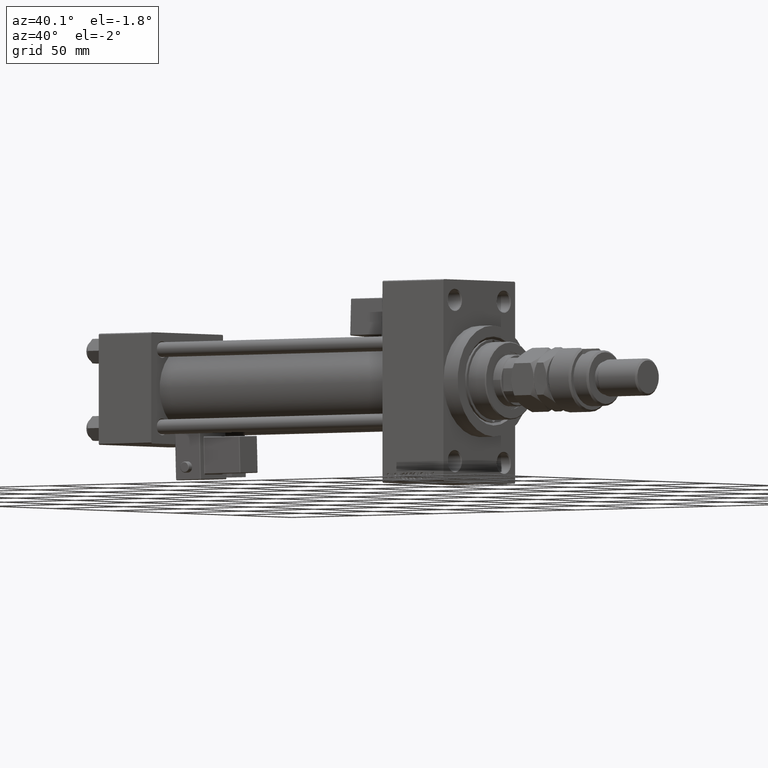
[diagram: clean part render]
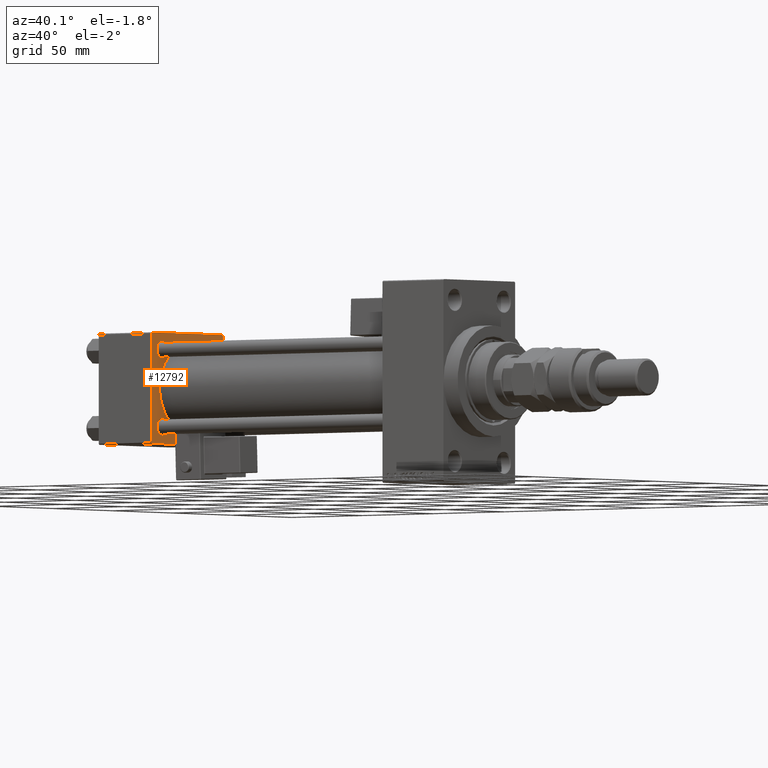
[diagram: same view with one face highlighted and labeled with its STEP entity id]
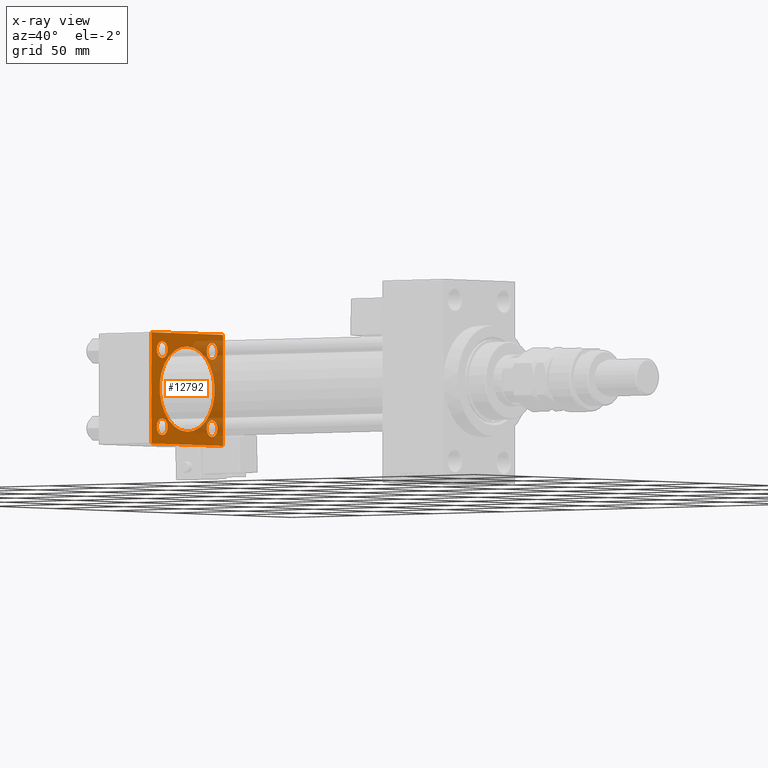
[diagram: x-ray of the same camera — body ghosted, the highlighted face saturated]
A machine part, auxiliary view. The second image highlights one B-rep face of the part: STEP entity #12792.
The next image is the same camera in x-ray: the body ghosted, the highlighted face saturated — about 33% of this face is hidden behind the body in this view.
In plain terms, the highlighted planar face has unit normal (-1, 0, 0).
Its self-contained STEP definition (entity closure, byte-faithful):
#3 = ORIENTED_EDGE ( 'NONE', *, *, #25946, .T. ) ;
#375 = CIRCLE ( 'NONE', #7161, 4.500000000000031974 ) ;
#425 = EDGE_CURVE ( 'NONE', #9847, #6914, #30904, .T. ) ;
#529 = VECTOR ( 'NONE', #16978, 1000.000000000000114 ) ;
#1654 = EDGE_CURVE ( 'NONE', #41457, #6518, #375, .T. ) ;
#2101 = CIRCLE ( 'NONE', #49659, 23.00000000000000000 ) ;
#2212 = AXIS2_PLACEMENT_3D ( 'NONE', #15601, #40328, #31799 ) ;
#2404 = ORIENTED_EDGE ( 'NONE', *, *, #1654, .T. ) ;
#2874 = AXIS2_PLACEMENT_3D ( 'NONE', #51586, #15430, #7447 ) ;
#3602 = VECTOR ( 'NONE', #18200, 1000.000000000000114 ) ;
#3763 = DIRECTION ( 'NONE',  ( 0.000000000000000000, -1.000000000000000000, -1.156482317317871725E-16 ) ) ;
#4022 = LINE ( 'NONE', #16000, #19701 ) ;
#4270 = EDGE_CURVE ( 'NONE', #51488, #5688, #21230, .T. ) ;
#5114 = DIRECTION ( 'NONE',  ( -1.000000000000000000, 0.000000000000000000, -0.000000000000000000 ) ) ;
#5434 = CARTESIAN_POINT ( 'NONE',  ( 37.00000000000000000, -30.00000000000000000, 29.49999999999999289 ) ) ;
#5688 = VERTEX_POINT ( 'NONE', #48260 ) ;
#6022 = CARTESIAN_POINT ( 'NONE',  ( 37.00000000000000711, 2.146024240737016609E-16, -23.00000000000000000 ) ) ;
#6383 = CARTESIAN_POINT ( 'NONE',  ( 37.00000000000000000, -20.84999999999999076, 25.35000000000003695 ) ) ;
#6518 = VERTEX_POINT ( 'NONE', #49311 ) ;
#6656 = CARTESIAN_POINT ( 'NONE',  ( 37.00000000000000000, -20.84999999999999076, -25.35000000000003695 ) ) ;
#6868 = CARTESIAN_POINT ( 'NONE',  ( 37.00000000000000000, 20.84999999999999787, 16.34999999999996945 ) ) ;
#6914 = VERTEX_POINT ( 'NONE', #6868 ) ;
#7161 = AXIS2_PLACEMENT_3D ( 'NONE', #29783, #17808, #38282 ) ;
#7273 = AXIS2_PLACEMENT_3D ( 'NONE', #16356, #36827, #7592 ) ;
#7447 = DIRECTION ( 'NONE',  ( 0.000000000000000000, 0.000000000000000000, 1.000000000000000000 ) ) ;
#7592 = DIRECTION ( 'NONE',  ( 0.000000000000000000, 0.000000000000000000, 1.000000000000000000 ) ) ;
#8259 = EDGE_CURVE ( 'NONE', #38964, #35043, #14976, .T. ) ;
#8396 = DIRECTION ( 'NONE',  ( -1.000000000000000000, 0.000000000000000000, -0.000000000000000000 ) ) ;
#8405 = CARTESIAN_POINT ( 'NONE',  ( 37.00000000000000000, -30.00000000000000000, -29.50000000000001776 ) ) ;
#8444 = CARTESIAN_POINT ( 'NONE',  ( 37.00000000000000000, -20.84999999999999076, -16.34999999999997300 ) ) ;
#9083 = AXIS2_PLACEMENT_3D ( 'NONE', #42784, #13801, #22035 ) ;
#9368 = CARTESIAN_POINT ( 'NONE',  ( 37.00000000000000000, -29.49999999999998579, 29.99999999999999289 ) ) ;
#9535 = EDGE_LOOP ( 'NONE', ( #34359, #22742 ) ) ;
#9764 = DIRECTION ( 'NONE',  ( 0.000000000000000000, 0.000000000000000000, -1.000000000000000000 ) ) ;
#9847 = VERTEX_POINT ( 'NONE', #36660 ) ;
#10074 = CIRCLE ( 'NONE', #30441, 4.500000000000031974 ) ;
#10151 = EDGE_CURVE ( 'NONE', #6914, #9847, #37968, .T. ) ;
#11186 = EDGE_LOOP ( 'NONE', ( #42302, #42013 ) ) ;
#11805 = CARTESIAN_POINT ( 'NONE',  ( 37.00000000000000000, 20.84999999999999787, -20.85000000000000142 ) ) ;
#12276 = CARTESIAN_POINT ( 'NONE',  ( 37.00000000000000000, -30.00000000000000000, 29.99999999999999289 ) ) ;
#12423 = CARTESIAN_POINT ( 'NONE',  ( 37.00000000000000000, 29.99999999999999289, 29.50000000000000000 ) ) ;
#12755 = VERTEX_POINT ( 'NONE', #37228 ) ;
#12792 = ADVANCED_FACE ( 'NONE', ( #18833, #47289, #35054, #30267, #22298, #46760 ), #26280, .F. ) ;
#12819 = ORIENTED_EDGE ( 'NONE', *, *, #45525, .F. ) ;
#13038 = CARTESIAN_POINT ( 'NONE',  ( 37.00000000000000000, -20.84999999999999076, 20.85000000000000497 ) ) ;
#13210 = VERTEX_POINT ( 'NONE', #9368 ) ;
#13407 = EDGE_LOOP ( 'NONE', ( #21042, #17309 ) ) ;
#13801 = DIRECTION ( 'NONE',  ( -1.000000000000000000, 0.000000000000000000, -0.000000000000000000 ) ) ;
#13875 = CARTESIAN_POINT ( 'NONE',  ( 37.00000000000000000, -20.84999999999999076, -20.85000000000000497 ) ) ;
#14487 = DIRECTION ( 'NONE',  ( 0.000000000000000000, 0.7071067811865474617, -0.7071067811865474617 ) ) ;
#14976 = CIRCLE ( 'NONE', #46357, 4.500000000000031974 ) ;
#15430 = DIRECTION ( 'NONE',  ( -1.000000000000000000, 0.000000000000000000, -0.000000000000000000 ) ) ;
#15601 = CARTESIAN_POINT ( 'NONE',  ( 37.00000000000000000, 20.84999999999999787, -20.85000000000000142 ) ) ;
#15679 = ORIENTED_EDGE ( 'NONE', *, *, #4270, .T. ) ;
#16000 = CARTESIAN_POINT ( 'NONE',  ( 37.00000000000000000, 29.99999999999999289, 30.00000000000000000 ) ) ;
#16150 = DIRECTION ( 'NONE',  ( 0.000000000000000000, 0.000000000000000000, 1.000000000000000000 ) ) ;
#16273 = VERTEX_POINT ( 'NONE', #8444 ) ;
#16356 = CARTESIAN_POINT ( 'NONE',  ( 37.00000000000000711, -2.602085213965210642E-15, 0.000000000000000000 ) ) ;
#16437 = LINE ( 'NONE', #20168, #50990 ) ;
#16746 = EDGE_CURVE ( 'NONE', #16273, #38478, #10074, .T. ) ;
#16978 = DIRECTION ( 'NONE',  ( 0.000000000000000000, -0.7071067811865474617, 0.7071067811865474617 ) ) ;
#17309 = ORIENTED_EDGE ( 'NONE', *, *, #425, .T. ) ;
#17808 = DIRECTION ( 'NONE',  ( -1.000000000000000000, 0.000000000000000000, -0.000000000000000000 ) ) ;
#17993 = CARTESIAN_POINT ( 'NONE',  ( 37.00000000000000000, 29.99999999999999289, 30.00000000000000000 ) ) ;
#18052 = VECTOR ( 'NONE', #14487, 1000.000000000000114 ) ;
#18200 = DIRECTION ( 'NONE',  ( -0.000000000000000000, -0.7071067811865474617, -0.7071067811865474617 ) ) ;
#18833 = FACE_BOUND ( 'NONE', #11186, .T. ) ;
#19613 = CARTESIAN_POINT ( 'NONE',  ( 37.00000000000000000, -20.84999999999999076, -20.85000000000000497 ) ) ;
#19701 = VECTOR ( 'NONE', #3763, 1000.000000000000000 ) ;
#19913 = AXIS2_PLACEMENT_3D ( 'NONE', #13038, #29237, #48848 ) ;
#20134 = AXIS2_PLACEMENT_3D ( 'NONE', #25137, #8396, #41365 ) ;
#20168 = CARTESIAN_POINT ( 'NONE',  ( 37.00000000000000000, 29.99999999999999289, -30.00000000000000000 ) ) ;
#20746 = EDGE_CURVE ( 'NONE', #33438, #28552, #44711, .T. ) ;
#20784 = AXIS2_PLACEMENT_3D ( 'NONE', #19613, #40354, #16150 ) ;
#21042 = ORIENTED_EDGE ( 'NONE', *, *, #10151, .T. ) ;
#21230 = LINE ( 'NONE', #45174, #529 ) ;
#21246 = ORIENTED_EDGE ( 'NONE', *, *, #27553, .T. ) ;
#22035 = DIRECTION ( 'NONE',  ( -0.000000000000000000, 0.000000000000000000, 1.000000000000000000 ) ) ;
#22192 = CARTESIAN_POINT ( 'NONE',  ( 37.00000000000000000, -30.00000000000000000, 29.49999999999999289 ) ) ;
#22298 = FACE_BOUND ( 'NONE', #41454, .T. ) ;
#22688 = VERTEX_POINT ( 'NONE', #39807 ) ;
#22742 = ORIENTED_EDGE ( 'NONE', *, *, #50528, .T. ) ;
#23477 = VERTEX_POINT ( 'NONE', #40462 ) ;
#23479 = EDGE_CURVE ( 'NONE', #5688, #13210, #4022, .T. ) ;
#24169 = CIRCLE ( 'NONE', #20784, 4.500000000000031974 ) ;
#25107 = ORIENTED_EDGE ( 'NONE', *, *, #23479, .T. ) ;
#25137 = CARTESIAN_POINT ( 'NONE',  ( 37.00000000000000000, 20.84999999999999787, 20.85000000000000142 ) ) ;
#25590 = LINE ( 'NONE', #29839, #30698 ) ;
#25946 = EDGE_CURVE ( 'NONE', #22688, #46749, #25590, .T. ) ;
#26280 = PLANE ( 'NONE',  #9083 ) ;
#26701 = LINE ( 'NONE', #42417, #18052 ) ;
#26771 = CIRCLE ( 'NONE', #7273, 23.00000000000000000 ) ;
#27553 = EDGE_CURVE ( 'NONE', #13210, #33438, #30432, .T. ) ;
#27560 = EDGE_CURVE ( 'NONE', #28552, #23477, #26701, .T. ) ;
#27995 = DIRECTION ( 'NONE',  ( 0.000000000000000000, 0.000000000000000000, 1.000000000000000000 ) ) ;
#28552 = VERTEX_POINT ( 'NONE', #8405 ) ;
#28735 = DIRECTION ( 'NONE',  ( 0.000000000000000000, 0.000000000000000000, -1.000000000000000000 ) ) ;
#29237 = DIRECTION ( 'NONE',  ( -1.000000000000000000, 0.000000000000000000, -0.000000000000000000 ) ) ;
#29239 = EDGE_CURVE ( 'NONE', #12755, #34123, #2101, .T. ) ;
#29783 = CARTESIAN_POINT ( 'NONE',  ( 37.00000000000000000, -20.84999999999999076, 20.85000000000000497 ) ) ;
#29839 = CARTESIAN_POINT ( 'NONE',  ( 37.00000000000000000, 29.99999999999999289, -29.50000000000000000 ) ) ;
#30036 = DIRECTION ( 'NONE',  ( 1.000000000000000000, -0.000000000000000000, 0.000000000000000000 ) ) ;
#30267 = FACE_BOUND ( 'NONE', #13407, .T. ) ;
#30432 = LINE ( 'NONE', #22192, #3602 ) ;
#30441 = AXIS2_PLACEMENT_3D ( 'NONE', #13875, #5114, #38597 ) ;
#30698 = VECTOR ( 'NONE', #42080, 999.9999999999998863 ) ;
#30904 = CIRCLE ( 'NONE', #2874, 4.500000000000031974 ) ;
#31799 = DIRECTION ( 'NONE',  ( 0.000000000000000000, 0.000000000000000000, 1.000000000000000000 ) ) ;
#32093 = EDGE_LOOP ( 'NONE', ( #37008, #2404 ) ) ;
#32474 = ORIENTED_EDGE ( 'NONE', *, *, #35276, .F. ) ;
#32783 = EDGE_CURVE ( 'NONE', #51488, #46749, #49645, .T. ) ;
#33031 = DIRECTION ( 'NONE',  ( -1.000000000000000000, 0.000000000000000000, -0.000000000000000000 ) ) ;
#33372 = CARTESIAN_POINT ( 'NONE',  ( 37.00000000000000000, 20.84999999999999787, -25.35000000000003340 ) ) ;
#33438 = VERTEX_POINT ( 'NONE', #5434 ) ;
#34123 = VERTEX_POINT ( 'NONE', #6022 ) ;
#34359 = ORIENTED_EDGE ( 'NONE', *, *, #8259, .T. ) ;
#35043 = VERTEX_POINT ( 'NONE', #47357 ) ;
#35054 = FACE_BOUND ( 'NONE', #32093, .T. ) ;
#35276 = EDGE_CURVE ( 'NONE', #22688, #23477, #16437, .T. ) ;
#36660 = CARTESIAN_POINT ( 'NONE',  ( 37.00000000000000000, 20.84999999999999787, 25.35000000000003340 ) ) ;
#36685 = ORIENTED_EDGE ( 'NONE', *, *, #29239, .F. ) ;
#36827 = DIRECTION ( 'NONE',  ( 1.000000000000000000, -0.000000000000000000, 0.000000000000000000 ) ) ;
#37008 = ORIENTED_EDGE ( 'NONE', *, *, #47206, .T. ) ;
#37228 = CARTESIAN_POINT ( 'NONE',  ( 37.00000000000000711, -2.602085213965210642E-15, 23.00000000000000000 ) ) ;
#37968 = CIRCLE ( 'NONE', #20134, 4.500000000000031974 ) ;
#38282 = DIRECTION ( 'NONE',  ( 0.000000000000000000, 0.000000000000000000, 1.000000000000000000 ) ) ;
#38478 = VERTEX_POINT ( 'NONE', #6656 ) ;
#38597 = DIRECTION ( 'NONE',  ( 0.000000000000000000, 0.000000000000000000, 1.000000000000000000 ) ) ;
#38964 = VERTEX_POINT ( 'NONE', #33372 ) ;
#39807 = CARTESIAN_POINT ( 'NONE',  ( 37.00000000000000000, 29.49999999999997868, -30.00000000000000000 ) ) ;
#39857 = DIRECTION ( 'NONE',  ( 0.000000000000000000, -1.000000000000000000, -1.156482317317871725E-16 ) ) ;
#40328 = DIRECTION ( 'NONE',  ( -1.000000000000000000, 0.000000000000000000, -0.000000000000000000 ) ) ;
#40354 = DIRECTION ( 'NONE',  ( -1.000000000000000000, 0.000000000000000000, -0.000000000000000000 ) ) ;
#40462 = CARTESIAN_POINT ( 'NONE',  ( 37.00000000000000000, -29.50000000000000000, -30.00000000000000711 ) ) ;
#40817 = EDGE_LOOP ( 'NONE', ( #32474, #3, #44727, #15679, #25107, #21246, #42377, #45053 ) ) ;
#41365 = DIRECTION ( 'NONE',  ( 0.000000000000000000, 0.000000000000000000, 1.000000000000000000 ) ) ;
#41454 = EDGE_LOOP ( 'NONE', ( #36685, #12819 ) ) ;
#41457 = VERTEX_POINT ( 'NONE', #6383 ) ;
#42013 = ORIENTED_EDGE ( 'NONE', *, *, #16746, .T. ) ;
#42080 = DIRECTION ( 'NONE',  ( -0.000000000000000000, 0.7071067811865574537, 0.7071067811865376918 ) ) ;
#42302 = ORIENTED_EDGE ( 'NONE', *, *, #44337, .T. ) ;
#42377 = ORIENTED_EDGE ( 'NONE', *, *, #20746, .T. ) ;
#42417 = CARTESIAN_POINT ( 'NONE',  ( 37.00000000000000000, -29.50000000000001066, -30.00000000000000711 ) ) ;
#42549 = CARTESIAN_POINT ( 'NONE',  ( 37.00000000000000711, -2.602085213965210642E-15, 0.000000000000000000 ) ) ;
#42784 = CARTESIAN_POINT ( 'NONE',  ( 37.00000000000000000, 0.000000000000000000, 0.000000000000000000 ) ) ;
#42835 = CIRCLE ( 'NONE', #19913, 4.500000000000031974 ) ;
#44337 = EDGE_CURVE ( 'NONE', #38478, #16273, #24169, .T. ) ;
#44711 = LINE ( 'NONE', #12276, #50136 ) ;
#44727 = ORIENTED_EDGE ( 'NONE', *, *, #32783, .F. ) ;
#45053 = ORIENTED_EDGE ( 'NONE', *, *, #27560, .T. ) ;
#45174 = CARTESIAN_POINT ( 'NONE',  ( 37.00000000000000000, 29.49999999999999289, 30.00000000000000000 ) ) ;
#45525 = EDGE_CURVE ( 'NONE', #34123, #12755, #26771, .T. ) ;
#46357 = AXIS2_PLACEMENT_3D ( 'NONE', #11805, #33031, #27995 ) ;
#46749 = VERTEX_POINT ( 'NONE', #48219 ) ;
#46760 = FACE_OUTER_BOUND ( 'NONE', #40817, .T. ) ;
#47054 = DIRECTION ( 'NONE',  ( 0.000000000000000000, 0.000000000000000000, 1.000000000000000000 ) ) ;
#47206 = EDGE_CURVE ( 'NONE', #6518, #41457, #42835, .T. ) ;
#47289 = FACE_BOUND ( 'NONE', #9535, .T. ) ;
#47357 = CARTESIAN_POINT ( 'NONE',  ( 37.00000000000000000, 20.84999999999999787, -16.34999999999996945 ) ) ;
#48074 = CIRCLE ( 'NONE', #2212, 4.500000000000031974 ) ;
#48219 = CARTESIAN_POINT ( 'NONE',  ( 37.00000000000000000, 29.99999999999999289, -29.50000000000000000 ) ) ;
#48260 = CARTESIAN_POINT ( 'NONE',  ( 37.00000000000000000, 29.49999999999999289, 30.00000000000000000 ) ) ;
#48848 = DIRECTION ( 'NONE',  ( 0.000000000000000000, 0.000000000000000000, 1.000000000000000000 ) ) ;
#49311 = CARTESIAN_POINT ( 'NONE',  ( 37.00000000000000000, -20.84999999999999076, 16.34999999999997300 ) ) ;
#49333 = VECTOR ( 'NONE', #9764, 1000.000000000000000 ) ;
#49645 = LINE ( 'NONE', #17993, #49333 ) ;
#49659 = AXIS2_PLACEMENT_3D ( 'NONE', #42549, #30036, #47054 ) ;
#50136 = VECTOR ( 'NONE', #28735, 1000.000000000000000 ) ;
#50528 = EDGE_CURVE ( 'NONE', #35043, #38964, #48074, .T. ) ;
#50990 = VECTOR ( 'NONE', #39857, 1000.000000000000000 ) ;
#51488 = VERTEX_POINT ( 'NONE', #12423 ) ;
#51586 = CARTESIAN_POINT ( 'NONE',  ( 37.00000000000000000, 20.84999999999999787, 20.85000000000000142 ) ) ;